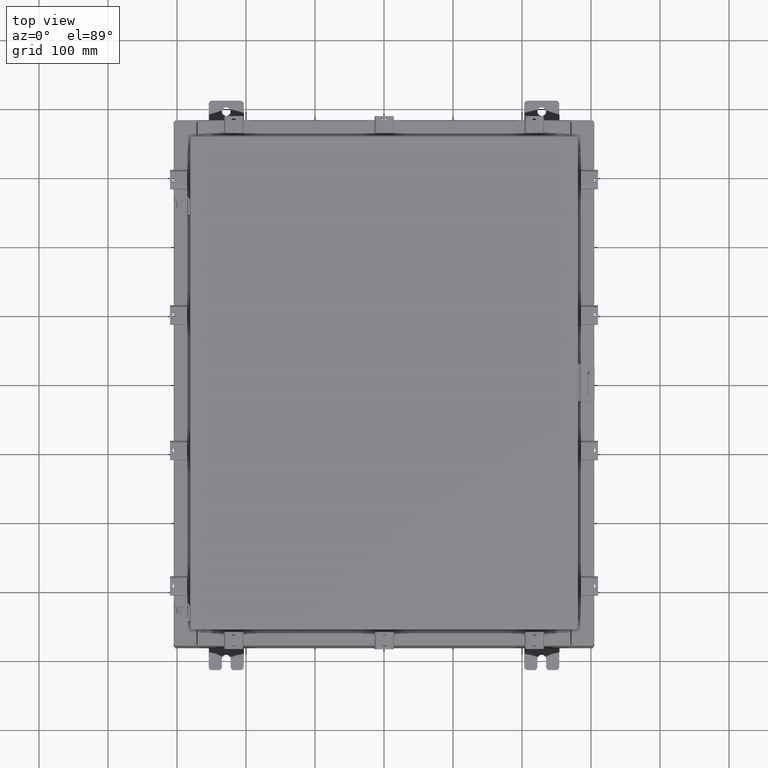
[diagram: clean part render]
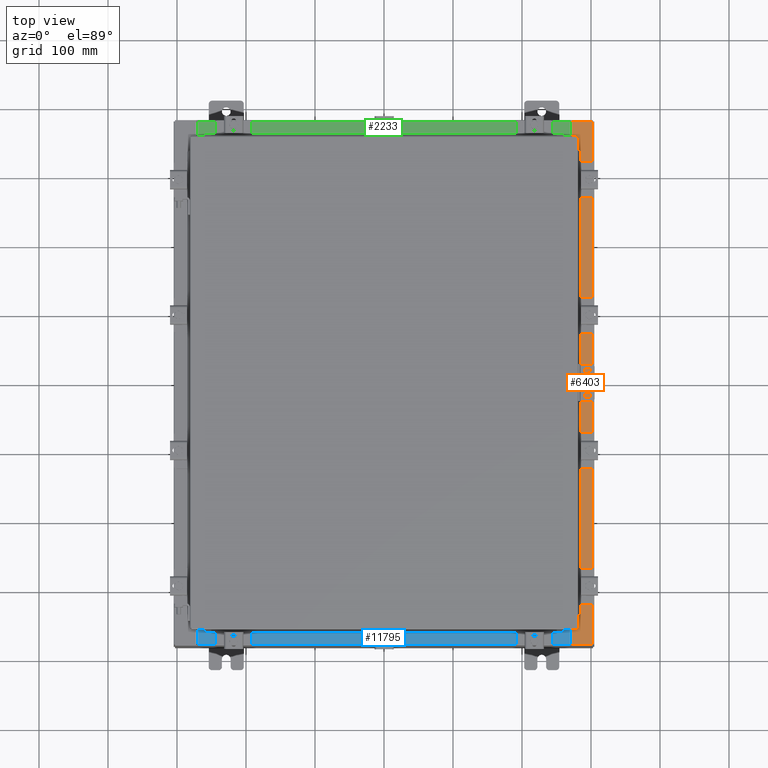
[diagram: same view with three faces highlighted in distinct colors, each labeled with its STEP entity id]
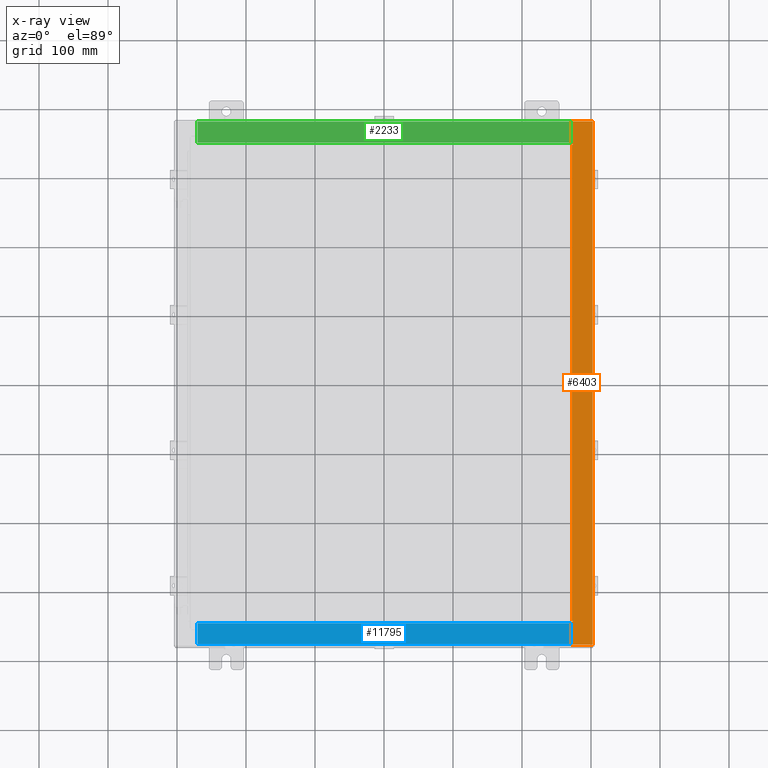
[diagram: x-ray of the same camera — body ghosted, the three highlighted faces saturated]
A machine part, top view with three faces highlighted in distinct colors.
The next image is the same camera in x-ray (body ghosted, the three faces saturated) — at least one of them is partly hidden behind the body in this view.
Their STEP definitions:

[orange] entity #6403 — the highlighted planar face has unit normal (-0, 0, -1).
#61 = DIRECTION ( 'NONE',  ( -6.241167087353086200E-015, 0.0000000000000000000, -1.000000000000000000 ) ) ;
#77 = CARTESIAN_POINT ( 'NONE',  ( 11.91230000000002500, -14.92530000000000200, 7.925300000000000000 ) ) ;
#208 = DIRECTION ( 'NONE',  ( -2.590438124695581200E-031, -1.000000000000000000, 1.616735716567471300E-045 ) ) ;
#643 = EDGE_CURVE ( 'NONE', #4060, #19880, #7803, .T. ) ;
#1291 = CARTESIAN_POINT ( 'NONE',  ( 10.69970000000002500, 14.92530000000000200, 7.925300000000007100 ) ) ;
#1609 = LINE ( 'NONE', #10925, #2761 ) ;
#1629 = DIRECTION ( 'NONE',  ( -1.000000000000000000, 0.0000000000000000000, -2.170286390200049500E-014 ) ) ;
#1806 = EDGE_CURVE ( 'NONE', #19743, #19237, #19674, .T. ) ;
#2128 = EDGE_CURVE ( 'NONE', #18042, #22149, #3965, .T. ) ;
#2146 = CARTESIAN_POINT ( 'NONE',  ( 10.71270000000002700, 13.59375000000000400, 7.925300000000009800 ) ) ;
#2296 = VECTOR ( 'NONE', #12256, 39.37007874015748100 ) ;
#2326 = CARTESIAN_POINT ( 'NONE',  ( 10.75005000000002500, 13.63110000000000400, 7.925300000000009800 ) ) ;
#2563 = EDGE_CURVE ( 'NONE', #10806, #19743, #14585, .T. ) ;
#2761 = VECTOR ( 'NONE', #208, 39.37007874015748100 ) ;
#2841 = CARTESIAN_POINT ( 'NONE',  ( 10.71270000000002700, -13.59375000000000400, 7.925300000000009800 ) ) ;
#3008 = ORIENTED_EDGE ( 'NONE', *, *, #22260, .F. ) ;
#3241 = VECTOR ( 'NONE', #3954, 39.37007874015748100 ) ;
#3405 = ORIENTED_EDGE ( 'NONE', *, *, #1806, .T. ) ;
#3406 = DIRECTION ( 'NONE',  ( -0.0000000000000000000, 1.000000000000000000, -0.0000000000000000000 ) ) ;
#3954 = DIRECTION ( 'NONE',  ( 1.000000000000000000, 0.0000000000000000000, 0.0000000000000000000 ) ) ;
#3965 = CIRCLE ( 'NONE', #21204, 0.01867499999999949400 ) ;
#4060 = VERTEX_POINT ( 'NONE', #12531 ) ;
#4371 = EDGE_CURVE ( 'NONE', #12101, #15308, #4451, .T. ) ;
#4451 = LINE ( 'NONE', #2326, #18190 ) ;
#5013 = CARTESIAN_POINT ( 'NONE',  ( 10.71270000000002700, 13.59375000000000400, 7.925300000000009800 ) ) ;
#5383 = VECTOR ( 'NONE', #20996, 39.37007874015748100 ) ;
#5426 = DIRECTION ( 'NONE',  ( 1.000000000000000000, 0.0000000000000000000, 0.0000000000000000000 ) ) ;
#5769 = CARTESIAN_POINT ( 'NONE',  ( 10.75005000000002500, -13.59375000000000400, 7.925300000000009800 ) ) ;
#5950 = AXIS2_PLACEMENT_3D ( 'NONE', #21416, #10706, #5426 ) ;
#6284 = VECTOR ( 'NONE', #21590, 39.37007874015748100 ) ;
#6333 = ORIENTED_EDGE ( 'NONE', *, *, #12516, .F. ) ;
#6403 = ADVANCED_FACE ( 'NONE', ( #6431 ), #9089, .F. ) ;
#6431 = FACE_OUTER_BOUND ( 'NONE', #21409, .T. ) ;
#6993 = EDGE_CURVE ( 'NONE', #22149, #4060, #19033, .T. ) ;
#7279 = CARTESIAN_POINT ( 'NONE',  ( 4.972393517341145600E-014, 0.0000000000000000000, 7.925300000000073700 ) ) ;
#7626 = LINE ( 'NONE', #15834, #2296 ) ;
#7803 = LINE ( 'NONE', #2841, #11990 ) ;
#8006 = LINE ( 'NONE', #2146, #3241 ) ;
#8314 = CARTESIAN_POINT ( 'NONE',  ( 10.69970000000002500, -14.92530000000000200, 7.925300000000007100 ) ) ;
#8391 = EDGE_CURVE ( 'NONE', #11102, #15308, #1609, .T. ) ;
#9014 = DIRECTION ( 'NONE',  ( -1.000000000000000000, 0.0000000000000000000, 6.241167087353087800E-015 ) ) ;
#9089 = PLANE ( 'NONE',  #18014 ) ;
#10444 = VECTOR ( 'NONE', #9014, 39.37007874015748100 ) ;
#10706 = DIRECTION ( 'NONE',  ( 6.241167087353086200E-015, 0.0000000000000000000, 1.000000000000000000 ) ) ;
#10806 = VERTEX_POINT ( 'NONE', #21934 ) ;
#10866 = DIRECTION ( 'NONE',  ( -1.000000000000000000, 0.0000000000000000000, 6.241167087353086200E-015 ) ) ;
#10925 = CARTESIAN_POINT ( 'NONE',  ( 10.69970000000002500, -2.771691080280524500E-030, 7.925300000000007100 ) ) ;
#11102 = VERTEX_POINT ( 'NONE', #1291 ) ;
#11304 = ORIENTED_EDGE ( 'NONE', *, *, #2128, .F. ) ;
#11339 = VERTEX_POINT ( 'NONE', #17965 ) ;
#11526 = ORIENTED_EDGE ( 'NONE', *, *, #6993, .F. ) ;
#11990 = VECTOR ( 'NONE', #3406, 39.37007874015748100 ) ;
#12101 = VERTEX_POINT ( 'NONE', #18385 ) ;
#12256 = DIRECTION ( 'NONE',  ( 1.000000000000000000, 0.0000000000000000000, 2.170286390200049500E-014 ) ) ;
#12516 = EDGE_CURVE ( 'NONE', #10806, #18042, #7626, .T. ) ;
#12531 = CARTESIAN_POINT ( 'NONE',  ( 10.71270000000002700, -13.59375000000000400, 7.925300000000009800 ) ) ;
#12596 = CARTESIAN_POINT ( 'NONE',  ( 10.69970000000002500, 13.63110000000000400, 7.925300000000007100 ) ) ;
#13270 = ORIENTED_EDGE ( 'NONE', *, *, #21649, .F. ) ;
#14486 = CARTESIAN_POINT ( 'NONE',  ( 11.91230000000002500, -14.92530000000000200, 7.925300000000000000 ) ) ;
#14541 = CARTESIAN_POINT ( 'NONE',  ( 10.75005000000002500, -13.63110000000000400, 7.925300000000007100 ) ) ;
#14585 = LINE ( 'NONE', #19896, #18820 ) ;
#14788 = VERTEX_POINT ( 'NONE', #17160 ) ;
#15308 = VERTEX_POINT ( 'NONE', #12596 ) ;
#15361 = VECTOR ( 'NONE', #18309, 39.37007874015748100 ) ;
#15834 = CARTESIAN_POINT ( 'NONE',  ( 10.69970000000002500, -13.63110000000000400, 7.925300000000008900 ) ) ;
#16707 = ORIENTED_EDGE ( 'NONE', *, *, #643, .F. ) ;
#17160 = CARTESIAN_POINT ( 'NONE',  ( 10.75005000000002500, 13.59375000000000400, 7.925300000000007100 ) ) ;
#17413 = ORIENTED_EDGE ( 'NONE', *, *, #2563, .T. ) ;
#17707 = CARTESIAN_POINT ( 'NONE',  ( 10.75005000000002500, -13.59375000000000400, 7.925300000000007100 ) ) ;
#17866 = ORIENTED_EDGE ( 'NONE', *, *, #4371, .F. ) ;
#17965 = CARTESIAN_POINT ( 'NONE',  ( 11.91230000000002500, 14.92530000000000200, 7.925300000000000000 ) ) ;
#18014 = AXIS2_PLACEMENT_3D ( 'NONE', #7279, #61, #10866 ) ;
#18042 = VERTEX_POINT ( 'NONE', #14541 ) ;
#18190 = VECTOR ( 'NONE', #1629, 39.37007874015748100 ) ;
#18309 = DIRECTION ( 'NONE',  ( -1.000000000000000000, 0.0000000000000000000, 0.0000000000000000000 ) ) ;
#18385 = CARTESIAN_POINT ( 'NONE',  ( 10.75005000000002500, 13.63110000000000400, 7.925300000000007100 ) ) ;
#18513 = CARTESIAN_POINT ( 'NONE',  ( 7.633858978166036100E-014, -14.92530000000002300, 7.925300000000073700 ) ) ;
#18820 = VECTOR ( 'NONE', #21272, 39.37007874015748100 ) ;
#18822 = ORIENTED_EDGE ( 'NONE', *, *, #20820, .F. ) ;
#19033 = LINE ( 'NONE', #5769, #15361 ) ;
#19099 = CARTESIAN_POINT ( 'NONE',  ( 10.75005000000002500, -13.61242500000000400, 7.925300000000009800 ) ) ;
#19237 = VERTEX_POINT ( 'NONE', #77 ) ;
#19674 = LINE ( 'NONE', #18513, #5383 ) ;
#19743 = VERTEX_POINT ( 'NONE', #8314 ) ;
#19880 = VERTEX_POINT ( 'NONE', #5013 ) ;
#19896 = CARTESIAN_POINT ( 'NONE',  ( 10.69970000000002500, -2.771691080280524500E-030, 7.925300000000007100 ) ) ;
#19978 = LINE ( 'NONE', #21498, #10444 ) ;
#20001 = LINE ( 'NONE', #14486, #6284 ) ;
#20299 = DIRECTION ( 'NONE',  ( 1.000000000000000000, 0.0000000000000000000, 0.0000000000000000000 ) ) ;
#20799 = ORIENTED_EDGE ( 'NONE', *, *, #8391, .T. ) ;
#20820 = EDGE_CURVE ( 'NONE', #14788, #12101, #23118, .T. ) ;
#20996 = DIRECTION ( 'NONE',  ( 1.000000000000000000, 1.783190596386596200E-015, -6.241167087353087800E-015 ) ) ;
#21204 = AXIS2_PLACEMENT_3D ( 'NONE', #19099, #21540, #20299 ) ;
#21272 = DIRECTION ( 'NONE',  ( -2.590438124695581200E-031, -1.000000000000000000, 1.616735716567471300E-045 ) ) ;
#21409 = EDGE_LOOP ( 'NONE', ( #6333, #17413, #3405, #3008, #23057, #20799, #17866, #18822, #13270, #16707, #11526, #11304 ) ) ;
#21416 = CARTESIAN_POINT ( 'NONE',  ( 10.75005000000002500, 13.61242500000000400, 7.925300000000009800 ) ) ;
#21498 = CARTESIAN_POINT ( 'NONE',  ( 4.972393517341145600E-014, 14.92530000000000000, 7.925300000000073700 ) ) ;
#21540 = DIRECTION ( 'NONE',  ( 6.241167087353086200E-015, 0.0000000000000000000, 1.000000000000000000 ) ) ;
#21590 = DIRECTION ( 'NONE',  ( -0.0000000000000000000, -1.000000000000000000, -0.0000000000000000000 ) ) ;
#21649 = EDGE_CURVE ( 'NONE', #19880, #14788, #8006, .T. ) ;
#21934 = CARTESIAN_POINT ( 'NONE',  ( 10.69970000000002500, -13.63110000000000400, 7.925300000000007100 ) ) ;
#22149 = VERTEX_POINT ( 'NONE', #17707 ) ;
#22260 = EDGE_CURVE ( 'NONE', #11339, #19237, #20001, .T. ) ;
#22731 = EDGE_CURVE ( 'NONE', #11339, #11102, #19978, .T. ) ;
#23057 = ORIENTED_EDGE ( 'NONE', *, *, #22731, .T. ) ;
#23118 = CIRCLE ( 'NONE', #5950, 0.01867499999999949400 ) ;

[blue] entity #11795 — the highlighted planar face has unit normal (-0, -0, 1).
#1135 = VERTEX_POINT ( 'NONE', #21637 ) ;
#1241 = DIRECTION ( 'NONE',  ( -0.0000000000000000000, 1.000000000000000000, -3.566381192773190000E-015 ) ) ;
#1340 = PLANE ( 'NONE',  #20681 ) ;
#1897 = ORIENTED_EDGE ( 'NONE', *, *, #9178, .F. ) ;
#2758 = LINE ( 'NONE', #4423, #8080 ) ;
#3007 = LINE ( 'NONE', #22655, #11390 ) ;
#3174 = FACE_OUTER_BOUND ( 'NONE', #12153, .T. ) ;
#4391 = DIRECTION ( 'NONE',  ( -0.0000000000000000000, -1.000000000000000000, 3.566381192773190000E-015 ) ) ;
#4423 = CARTESIAN_POINT ( 'NONE',  ( -2.252313287748606700E-018, -0.08770000000000000000, 4.000000000000000900 ) ) ;
#5254 = LINE ( 'NONE', #20428, #9452 ) ;
#6482 = ORIENTED_EDGE ( 'NONE', *, *, #11835, .F. ) ;
#6742 = DIRECTION ( 'NONE',  ( 0.0000000000000000000, 3.566381192773190000E-015, 1.000000000000000000 ) ) ;
#7258 = VERTEX_POINT ( 'NONE', #18378 ) ;
#7396 = EDGE_CURVE ( 'NONE', #1135, #11323, #2758, .T. ) ;
#8080 = VECTOR ( 'NONE', #15122, 39.37007874015748100 ) ;
#9002 = EDGE_CURVE ( 'NONE', #1135, #7258, #5254, .T. ) ;
#9030 = CARTESIAN_POINT ( 'NONE',  ( -10.63720000000000200, -1.287299999999999200, 4.000000000000004400 ) ) ;
#9178 = EDGE_CURVE ( 'NONE', #12645, #11323, #3007, .T. ) ;
#9452 = VECTOR ( 'NONE', #4391, 39.37007874015748100 ) ;
#9718 = ORIENTED_EDGE ( 'NONE', *, *, #7396, .T. ) ;
#11323 = VERTEX_POINT ( 'NONE', #21452 ) ;
#11390 = VECTOR ( 'NONE', #1241, 39.37007874015748100 ) ;
#11580 = LINE ( 'NONE', #14065, #20521 ) ;
#11655 = ORIENTED_EDGE ( 'NONE', *, *, #9002, .F. ) ;
#11795 = ADVANCED_FACE ( 'NONE', ( #3174 ), #1340, .T. ) ;
#11835 = EDGE_CURVE ( 'NONE', #7258, #12645, #11580, .T. ) ;
#12153 = EDGE_LOOP ( 'NONE', ( #1897, #6482, #11655, #9718 ) ) ;
#12645 = VERTEX_POINT ( 'NONE', #9030 ) ;
#14065 = CARTESIAN_POINT ( 'NONE',  ( 10.63720000000000400, -1.287299999999999900, 4.000000000000003600 ) ) ;
#15122 = DIRECTION ( 'NONE',  ( -1.000000000000000000, 2.568202152506545800E-017, -9.159187855938968600E-032 ) ) ;
#15859 = DIRECTION ( 'NONE',  ( -1.000000000000000000, 0.0000000000000000000, 0.0000000000000000000 ) ) ;
#17466 = CARTESIAN_POINT ( 'NONE',  ( 0.0000000000000000000, 1.425992975200418500E-014, 4.000000000000000000 ) ) ;
#18378 = CARTESIAN_POINT ( 'NONE',  ( 10.63720000000000200, -1.287299999999999900, 4.000000000000004400 ) ) ;
#19288 = DIRECTION ( 'NONE',  ( 0.0000000000000000000, -1.000000000000000000, 3.566381192773190000E-015 ) ) ;
#20428 = CARTESIAN_POINT ( 'NONE',  ( 10.63720000000000200, -1.300299999999999800, 4.000000000000004400 ) ) ;
#20521 = VECTOR ( 'NONE', #15859, 39.37007874015748100 ) ;
#20681 = AXIS2_PLACEMENT_3D ( 'NONE', #17466, #6742, #19288 ) ;
#21452 = CARTESIAN_POINT ( 'NONE',  ( -10.63720000000000200, -0.08770000000000000000, 4.000000000000000000 ) ) ;
#21637 = CARTESIAN_POINT ( 'NONE',  ( 10.63720000000000400, -0.08769999999999965300, 4.000000000000000000 ) ) ;
#22655 = CARTESIAN_POINT ( 'NONE',  ( -10.63720000000000200, -0.07469999999999973900, 4.000000000000000000 ) ) ;

[green] entity #2233 — the highlighted planar face has unit normal (0, 0, 1).
#249 = ORIENTED_EDGE ( 'NONE', *, *, #21546, .F. ) ;
#715 = VECTOR ( 'NONE', #5374, 39.37007874015748100 ) ;
#1845 = CARTESIAN_POINT ( 'NONE',  ( 10.63720000000000200, -1.300299999999999800, 4.000000000000004400 ) ) ;
#2233 = ADVANCED_FACE ( 'NONE', ( #11800 ), #21868, .T. ) ;
#2569 = CARTESIAN_POINT ( 'NONE',  ( -2.252313287748606700E-018, -0.08770000000000000000, 4.000000000000000900 ) ) ;
#3010 = CARTESIAN_POINT ( 'NONE',  ( 0.0000000000000000000, 1.425992975200418500E-014, 4.000000000000000000 ) ) ;
#3150 = DIRECTION ( 'NONE',  ( 0.0000000000000000000, 3.566381192773190000E-015, 1.000000000000000000 ) ) ;
#3575 = CARTESIAN_POINT ( 'NONE',  ( -10.63720000000000200, -0.07469999999999973900, 4.000000000000000000 ) ) ;
#3741 = CARTESIAN_POINT ( 'NONE',  ( 10.63720000000000400, -1.287299999999999900, 4.000000000000003600 ) ) ;
#3783 = CARTESIAN_POINT ( 'NONE',  ( 10.63720000000000200, -1.287299999999999900, 4.000000000000004400 ) ) ;
#4080 = DIRECTION ( 'NONE',  ( 0.0000000000000000000, -1.000000000000000000, 3.566381192773190000E-015 ) ) ;
#5374 = DIRECTION ( 'NONE',  ( -0.0000000000000000000, 1.000000000000000000, -3.566381192773190000E-015 ) ) ;
#6861 = VERTEX_POINT ( 'NONE', #19787 ) ;
#8028 = VECTOR ( 'NONE', #13299, 39.37007874015748100 ) ;
#8052 = ORIENTED_EDGE ( 'NONE', *, *, #21103, .T. ) ;
#8306 = EDGE_CURVE ( 'NONE', #12742, #12694, #21198, .T. ) ;
#8476 = ORIENTED_EDGE ( 'NONE', *, *, #20097, .F. ) ;
#9999 = AXIS2_PLACEMENT_3D ( 'NONE', #3010, #3150, #4080 ) ;
#11716 = VECTOR ( 'NONE', #16170, 39.37007874015748100 ) ;
#11800 = FACE_OUTER_BOUND ( 'NONE', #20310, .T. ) ;
#12694 = VERTEX_POINT ( 'NONE', #3783 ) ;
#12742 = VERTEX_POINT ( 'NONE', #21672 ) ;
#13145 = VECTOR ( 'NONE', #16326, 39.37007874015748100 ) ;
#13299 = DIRECTION ( 'NONE',  ( -1.000000000000000000, 2.568202152506545800E-017, -9.159187855938968600E-032 ) ) ;
#13888 = ORIENTED_EDGE ( 'NONE', *, *, #8306, .F. ) ;
#14991 = LINE ( 'NONE', #3575, #715 ) ;
#16170 = DIRECTION ( 'NONE',  ( -0.0000000000000000000, -1.000000000000000000, 3.566381192773190000E-015 ) ) ;
#16326 = DIRECTION ( 'NONE',  ( -1.000000000000000000, 0.0000000000000000000, 0.0000000000000000000 ) ) ;
#18176 = LINE ( 'NONE', #3741, #13145 ) ;
#18549 = VERTEX_POINT ( 'NONE', #23013 ) ;
#19787 = CARTESIAN_POINT ( 'NONE',  ( -10.63720000000000200, -0.08770000000000000000, 4.000000000000000000 ) ) ;
#20097 = EDGE_CURVE ( 'NONE', #12694, #18549, #18176, .T. ) ;
#20310 = EDGE_LOOP ( 'NONE', ( #249, #8476, #13888, #8052 ) ) ;
#21103 = EDGE_CURVE ( 'NONE', #12742, #6861, #22266, .T. ) ;
#21198 = LINE ( 'NONE', #1845, #11716 ) ;
#21546 = EDGE_CURVE ( 'NONE', #18549, #6861, #14991, .T. ) ;
#21672 = CARTESIAN_POINT ( 'NONE',  ( 10.63720000000000400, -0.08769999999999965300, 4.000000000000000000 ) ) ;
#21868 = PLANE ( 'NONE',  #9999 ) ;
#22266 = LINE ( 'NONE', #2569, #8028 ) ;
#23013 = CARTESIAN_POINT ( 'NONE',  ( -10.63720000000000200, -1.287299999999999200, 4.000000000000004400 ) ) ;